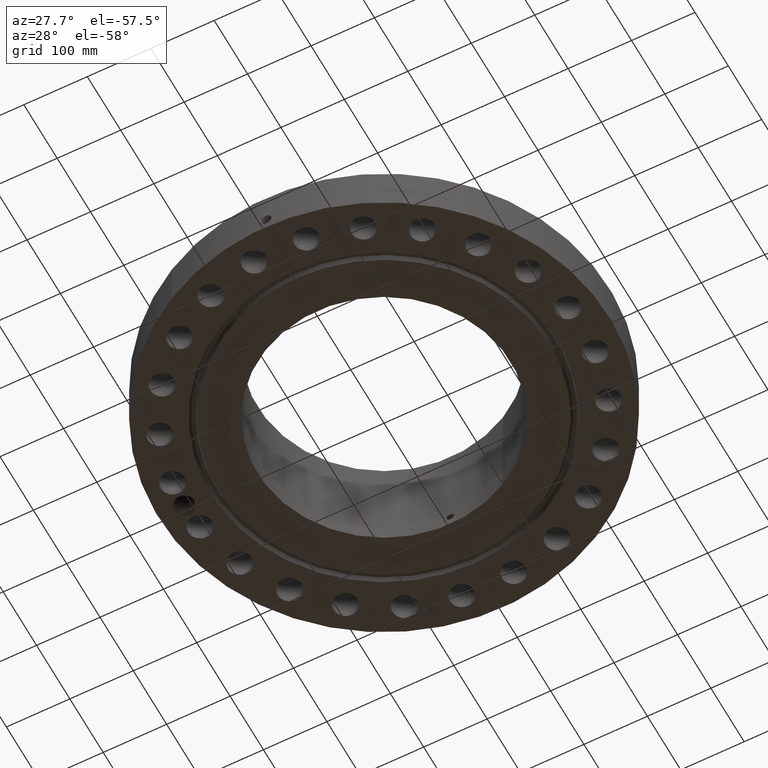
[diagram: clean part render]
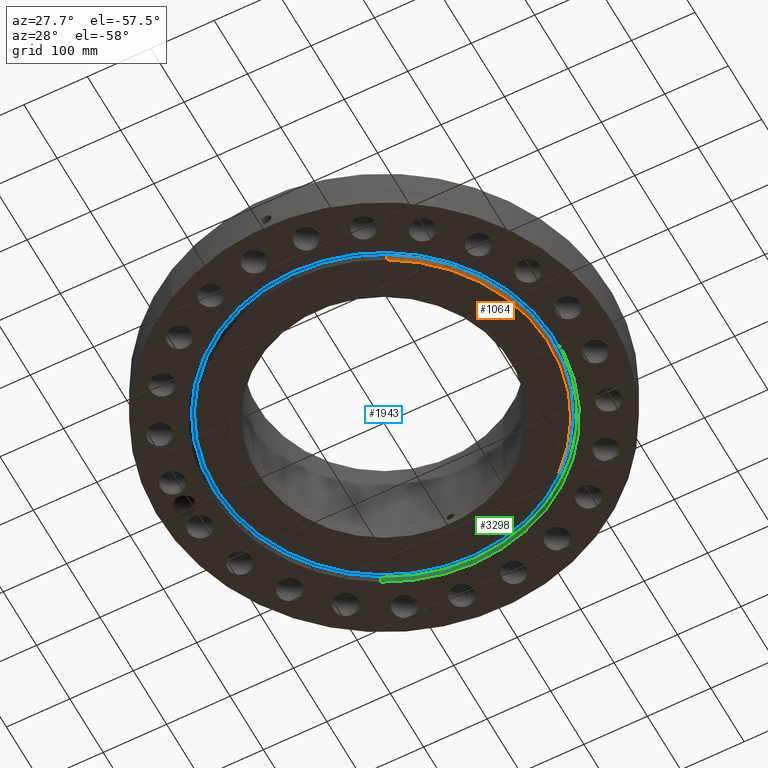
[diagram: same view with three faces highlighted in distinct colors, each labeled with its STEP entity id]
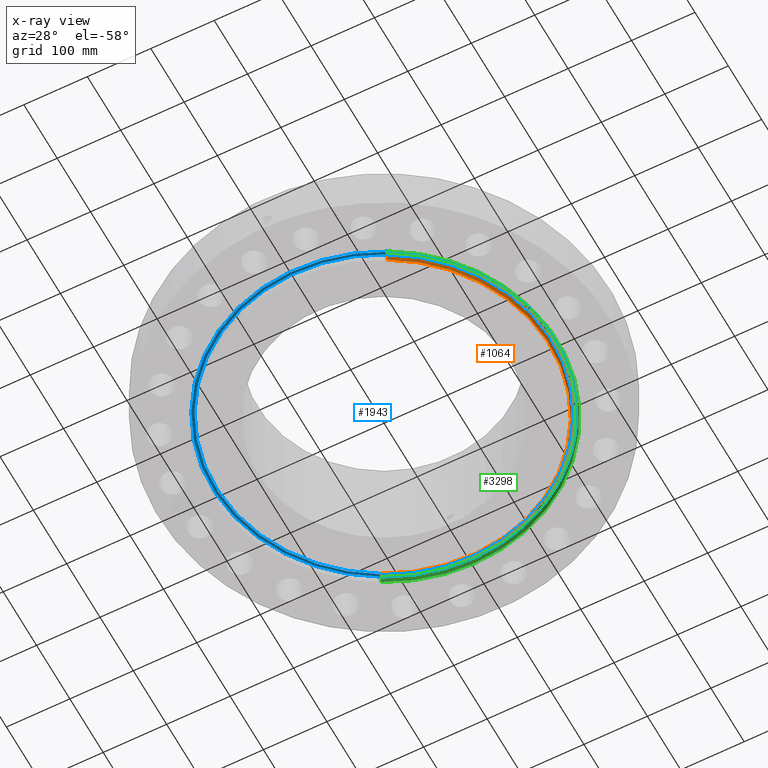
[diagram: x-ray of the same camera — body ghosted, the three highlighted faces saturated]
A machine part, auxiliary view with three faces highlighted in distinct colors.
The next image is the same camera in x-ray (body ghosted, the three faces saturated) — at least one of them is partly hidden behind the body in this view.
Their STEP definitions:

[orange] entity #1064 — the highlighted conical surface has half-angle 23 deg.
#602=AXIS2_PLACEMENT_3D('Circle Axis2P3D',#600,#601,$) ;
#1037=AXIS2_PLACEMENT_3D('Cone Axis2P3D',#1034,#1035,#1036) ;
#1048=AXIS2_PLACEMENT_3D('Circle Axis2P3D',#1046,#1047,$) ;
#600=CARTESIAN_POINT('Axis2P3D Location',(1.1189649382E-015,0.,0.)) ;
#604=CARTESIAN_POINT('Vertex',(-4.92154286656,9.00882378912,-3.49676543189E-017)) ;
#606=CARTESIAN_POINT('Vertex',(4.92154286656,-9.00882378912,0.)) ;
#1034=CARTESIAN_POINT('Axis2P3D Location',(0.,0.,-0.0600000000002)) ;
#1039=CARTESIAN_POINT('Line Origine',(-4.95142967067,9.06353121709,0.146860966928)) ;
#1043=CARTESIAN_POINT('Vertex',(-4.98131647478,9.11823864505,0.293721933856)) ;
#1046=CARTESIAN_POINT('Axis2P3D Location',(0.,0.,0.293721933856)) ;
#1050=CARTESIAN_POINT('Vertex',(4.98131647478,-9.11823864505,0.293721933856)) ;
#1053=CARTESIAN_POINT('Line Origine',(4.95142967067,-9.06353121709,0.146860966928)) ;
#601=DIRECTION('Axis2P3D Direction',(0.,0.,-0.0393700787402)) ;
#1035=DIRECTION('Axis2P3D Direction',(0.,0.,0.0393700787402)) ;
#1036=DIRECTION('Axis2P3D XDirection',(-0.0188750212049,0.0345504945626,0.)) ;
#1040=DIRECTION('Vector Direction',(-0.00737505833565,0.0134999537303,0.0362403485611)) ;
#1047=DIRECTION('Axis2P3D Direction',(0.,0.,0.0393700787402)) ;
#1054=DIRECTION('Vector Direction',(0.00737505833565,-0.0134999537303,0.0362403485611)) ;
#1041=VECTOR('Line Direction',#1040,0.0393700787402) ;
#1055=VECTOR('Line Direction',#1054,0.0393700787402) ;
#1059=ORIENTED_EDGE('',*,*,#1045,.F.) ;
#1060=ORIENTED_EDGE('',*,*,#1052,.F.) ;
#1061=ORIENTED_EDGE('',*,*,#1057,.T.) ;
#1062=ORIENTED_EDGE('',*,*,#608,.F.) ;
#1064=ADVANCED_FACE('PartBody',(#1063),#1038,.T.) ;
#603=CIRCLE('generated circle',#602,10.2655) ;
#1049=CIRCLE('generated circle',#1048,10.3901775639) ;
#1038=CONICAL_SURFACE('Cone',#1037,10.2400315111,0.401425727959) ;
#608=EDGE_CURVE('',#605,#607,#603,.T.) ;
#1045=EDGE_CURVE('',#1044,#605,#1042,.F.) ;
#1052=EDGE_CURVE('',#1051,#1044,#1049,.T.) ;
#1057=EDGE_CURVE('',#1051,#607,#1056,.F.) ;
#1058=EDGE_LOOP('',(#1059,#1060,#1061,#1062)) ;
#1063=FACE_OUTER_BOUND('',#1058,.T.) ;
#1042=LINE('Line',#1039,#1041) ;
#1056=LINE('Line',#1053,#1055) ;
#605=VERTEX_POINT('',#604) ;
#607=VERTEX_POINT('',#606) ;
#1044=VERTEX_POINT('',#1043) ;
#1051=VERTEX_POINT('',#1050) ;

[blue] entity #1943 — the highlighted planar face has unit normal (0, 0, 1).
#1407=AXIS2_PLACEMENT_3D('Circle Axis2P3D',#1405,#1406,$) ;
#1433=AXIS2_PLACEMENT_3D('Circle Axis2P3D',#1431,#1432,$) ;
#1919=AXIS2_PLACEMENT_3D('Plane Axis2P3D',#1916,#1917,#1918) ;
#1923=AXIS2_PLACEMENT_3D('Circle Axis2P3D',#1921,#1922,$) ;
#1932=AXIS2_PLACEMENT_3D('Circle Axis2P3D',#1930,#1931,$) ;
#1405=CARTESIAN_POINT('Axis2P3D Location',(0.,0.,0.312000000001)) ;
#1409=CARTESIAN_POINT('Vertex',(4.99455588084,-9.14247321528,0.312000000001)) ;
#1411=CARTESIAN_POINT('Vertex',(-4.99455588084,9.14247321528,0.312000000001)) ;
#1431=CARTESIAN_POINT('Axis2P3D Location',(0.,0.,0.312000000001)) ;
#1916=CARTESIAN_POINT('Axis2P3D Location',(0.,10.4177927095,0.312000000001)) ;
#1921=CARTESIAN_POINT('Axis2P3D Location',(0.,0.,0.312000000001)) ;
#1925=CARTESIAN_POINT('Vertex',(-5.07338042989,9.2867605845,0.312000000001)) ;
#1927=CARTESIAN_POINT('Vertex',(5.07338042989,-9.2867605845,0.312000000001)) ;
#1930=CARTESIAN_POINT('Axis2P3D Location',(0.,0.,0.312000000001)) ;
#1406=DIRECTION('Axis2P3D Direction',(0.,0.,0.0393700787402)) ;
#1432=DIRECTION('Axis2P3D Direction',(0.,0.,0.0393700787402)) ;
#1917=DIRECTION('Axis2P3D Direction',(0.,0.,0.0393700787402)) ;
#1918=DIRECTION('Axis2P3D XDirection',(0.0393700787402,0.,0.)) ;
#1922=DIRECTION('Axis2P3D Direction',(0.,0.,0.0393700787402)) ;
#1931=DIRECTION('Axis2P3D Direction',(0.,0.,0.0393700787402)) ;
#1936=ORIENTED_EDGE('',*,*,#1929,.F.) ;
#1937=ORIENTED_EDGE('',*,*,#1934,.F.) ;
#1940=ORIENTED_EDGE('',*,*,#1413,.T.) ;
#1941=ORIENTED_EDGE('',*,*,#1435,.T.) ;
#1942=FACE_BOUND('',#1939,.T.) ;
#1943=ADVANCED_FACE('PartBody',(#1938,#1942),#1920,.F.) ;
#1408=CIRCLE('generated circle',#1407,10.4177927095) ;
#1434=CIRCLE('generated circle',#1433,10.4177927095) ;
#1924=CIRCLE('generated circle',#1923,10.5822072905) ;
#1933=CIRCLE('generated circle',#1932,10.5822072905) ;
#1413=EDGE_CURVE('',#1410,#1412,#1408,.T.) ;
#1435=EDGE_CURVE('',#1412,#1410,#1434,.T.) ;
#1929=EDGE_CURVE('',#1926,#1928,#1924,.T.) ;
#1934=EDGE_CURVE('',#1928,#1926,#1933,.T.) ;
#1935=EDGE_LOOP('',(#1936,#1937)) ;
#1939=EDGE_LOOP('',(#1940,#1941)) ;
#1938=FACE_OUTER_BOUND('',#1935,.T.) ;
#1920=PLANE('',#1919) ;
#1410=VERTEX_POINT('',#1409) ;
#1412=VERTEX_POINT('',#1411) ;
#1926=VERTEX_POINT('',#1925) ;
#1928=VERTEX_POINT('',#1927) ;

[green] entity #3298 — the highlighted conical surface has half-angle 23 deg.
#2609=AXIS2_PLACEMENT_3D('Circle Axis2P3D',#2607,#2608,$) ;
#3271=AXIS2_PLACEMENT_3D('Cone Axis2P3D',#3268,#3269,#3270) ;
#3275=AXIS2_PLACEMENT_3D('Circle Axis2P3D',#3273,#3274,$) ;
#2607=CARTESIAN_POINT('Axis2P3D Location',(0.,0.,0.293721933856)) ;
#2611=CARTESIAN_POINT('Vertex',(5.08661983595,-9.31099515472,0.293721933856)) ;
#2613=CARTESIAN_POINT('Vertex',(-5.08661983595,9.31099515472,0.293721933856)) ;
#3268=CARTESIAN_POINT('Axis2P3D Location',(0.,0.,0.293721933856)) ;
#3273=CARTESIAN_POINT('Axis2P3D Location',(0.,0.,-3.49676543189E-017)) ;
#3277=CARTESIAN_POINT('Vertex',(-5.14639344417,9.42041001065,-3.49676543189E-017)) ;
#3279=CARTESIAN_POINT('Vertex',(5.14639344417,-9.42041001065,-3.49676543189E-017)) ;
#3282=CARTESIAN_POINT('Line Origine',(5.11650664006,-9.36570258269,0.146860966928)) ;
#3287=CARTESIAN_POINT('Line Origine',(-5.11650664006,9.36570258269,0.146860966928)) ;
#2608=DIRECTION('Axis2P3D Direction',(0.,0.,0.0393700787402)) ;
#3269=DIRECTION('Axis2P3D Direction',(-0.,-0.,-0.0393700787402)) ;
#3270=DIRECTION('Axis2P3D XDirection',(0.0188750212049,-0.0345504945626,0.)) ;
#3274=DIRECTION('Axis2P3D Direction',(0.,0.,-0.0393700787402)) ;
#3283=DIRECTION('Vector Direction',(0.00737505833565,-0.0134999537303,-0.0362403485611)) ;
#3288=DIRECTION('Vector Direction',(-0.00737505833565,0.0134999537303,-0.0362403485611)) ;
#3284=VECTOR('Line Direction',#3283,0.0393700787402) ;
#3289=VECTOR('Line Direction',#3288,0.0393700787402) ;
#3293=ORIENTED_EDGE('',*,*,#3281,.T.) ;
#3294=ORIENTED_EDGE('',*,*,#3286,.T.) ;
#3295=ORIENTED_EDGE('',*,*,#2615,.T.) ;
#3296=ORIENTED_EDGE('',*,*,#3291,.F.) ;
#3298=ADVANCED_FACE('PartBody',(#3297),#3272,.F.) ;
#2610=CIRCLE('generated circle',#2609,10.6098224362) ;
#3276=CIRCLE('generated circle',#3275,10.7345) ;
#3272=CONICAL_SURFACE('Cone',#3271,10.6098224362,0.401425727959) ;
#2615=EDGE_CURVE('',#2612,#2614,#2610,.T.) ;
#3281=EDGE_CURVE('',#3278,#3280,#3276,.T.) ;
#3286=EDGE_CURVE('',#3280,#2612,#3285,.F.) ;
#3291=EDGE_CURVE('',#3278,#2614,#3290,.F.) ;
#3292=EDGE_LOOP('',(#3293,#3294,#3295,#3296)) ;
#3297=FACE_OUTER_BOUND('',#3292,.T.) ;
#3285=LINE('Line',#3282,#3284) ;
#3290=LINE('Line',#3287,#3289) ;
#2612=VERTEX_POINT('',#2611) ;
#2614=VERTEX_POINT('',#2613) ;
#3278=VERTEX_POINT('',#3277) ;
#3280=VERTEX_POINT('',#3279) ;